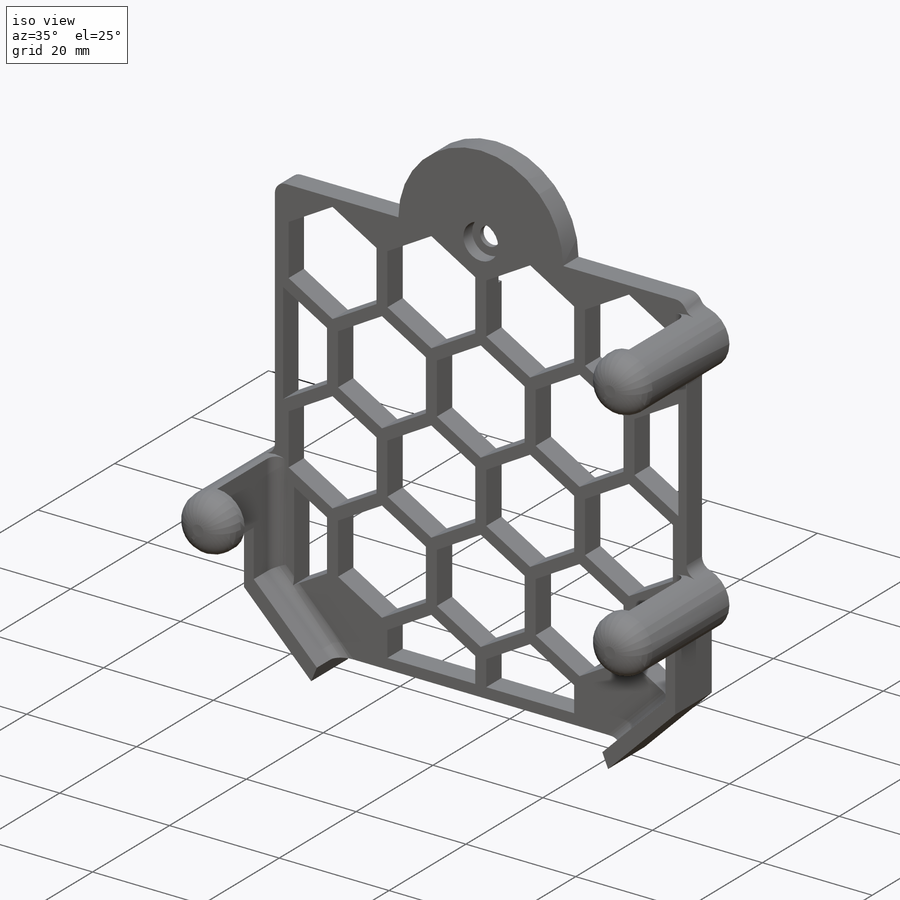
[diagram: iso view]
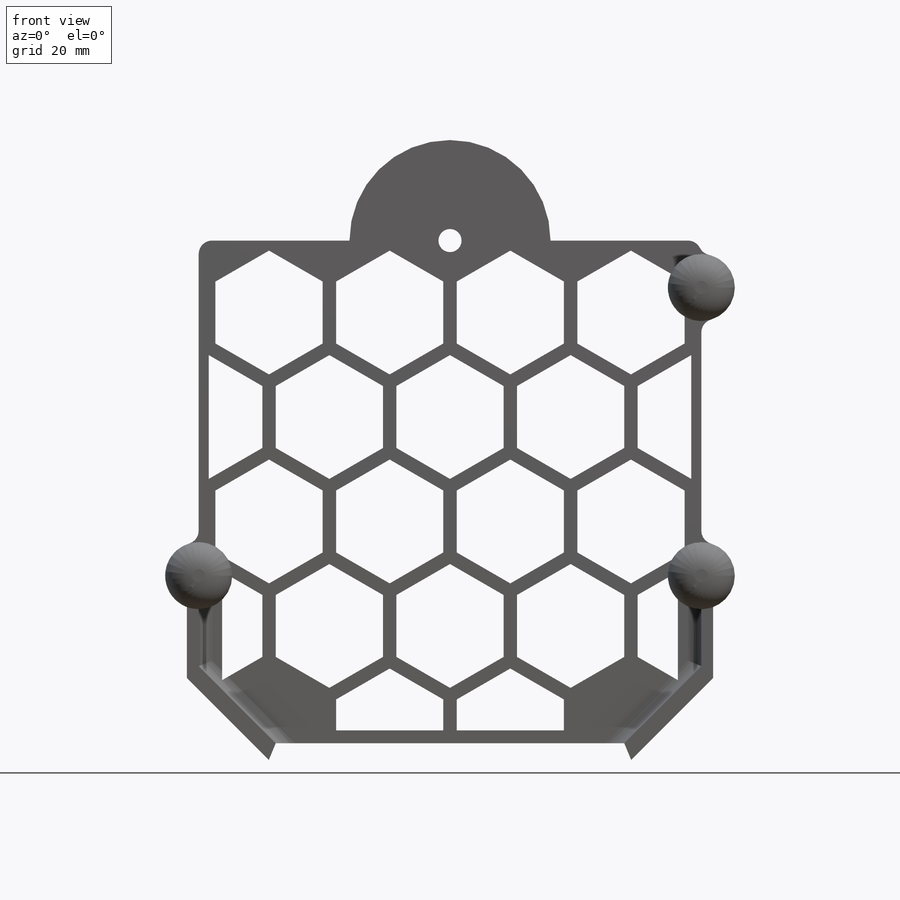
[diagram: front view]
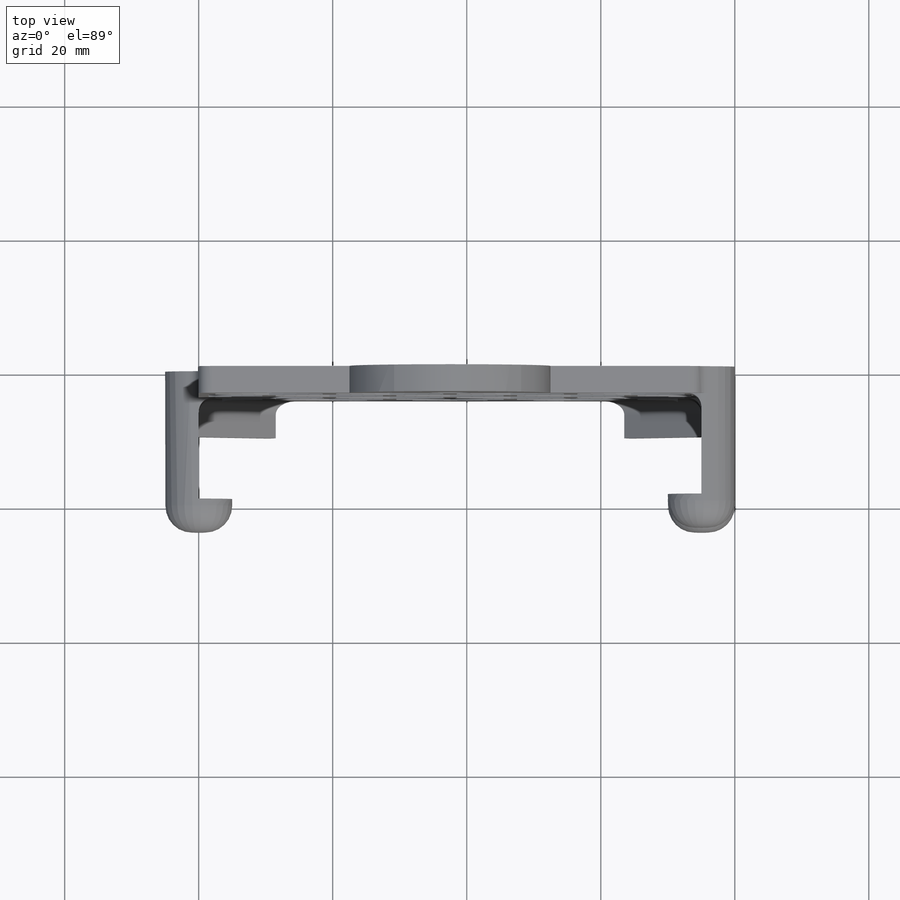
[diagram: top view]
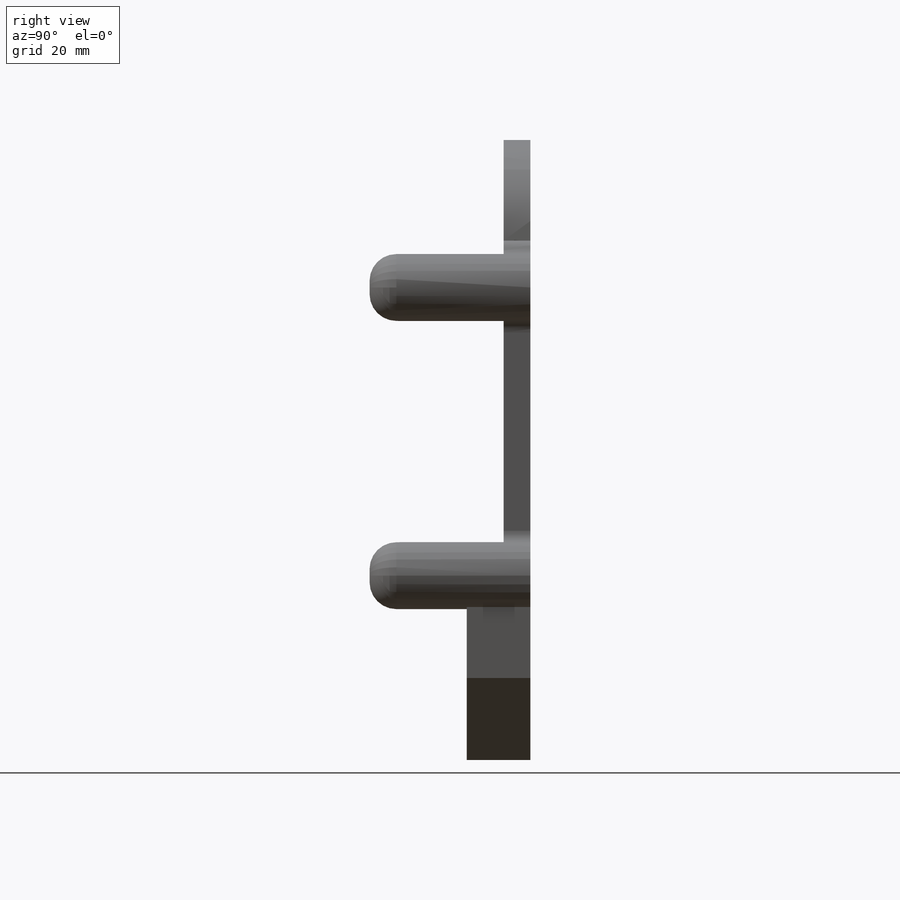
[diagram: right view]
SOLIDWORKS PART (.sldprt)
format: sldprt  version: not decoded by parser v0  size: 706,048 bytes
history: native  units: mm
features: sketch x8, extrude x3, plane x3, cut_extrude x3, fillet x3, material x1, hole x1 (+13 scaffold rows collapsed)
feature tree (35):
  scaffold x13  (default folders/planes/origin — collapsed)
  material  "Material <not specified>"
  sketch  "Sketch1"  dims[c1.D5=10.0mm c1.D7=10.0mm c1.D8=1.99mm c1.D9=~8.376531mm c1.D1=75.0mm c1.D2=150.0mm c1.D3=26.0mm c1.D4=26.0mm c2.D5=15.0mm c2.D6=0.0mm c3.D5=25.0mm c3.D6=25.0mm c3.D7=15.0mm c3.D2=75.0mm c4.D7=2.0mm c4.D1=2.5mm]
  extrude  "Base"  Depth=4mm
  extrude  "Phone Posts"  [1 undecoded]
  sketch  "Sketch1<3>"  dims[D1=24.0mm]
  extrude  "Bottom Phone Retainer"  [1 undecoded]
  sketch  "Sketch1<4>"  dims[D1=9.5mm]
  plane  "Plane1"  Offset=0mm
  sketch  "Sketch2"  dims[D1=15.0mm D2=75.0mm]
  cut_extrude  "Phone Slot"  [1 undecoded]
  fillet  "Fillet1"  Radius=4mm
  fillet  "Fillet3"  Radius=2mm
  plane  "Plane2"  Offset=0mm
  sketch  "Honey Comb Retainer"  dims[D3=7.6mm D1=15.0mm D2=15.0mm]
  plane  "Plane3"  Offset=0mm
  sketch  "Sketch5"  dims[c1.D6=~69.637731mm c1.D3=9.0mm c1.D5=6.0mm c1.D7=7.0mm c1.D1=75.0mm c1.D2=37.5mm c2.D3=10.0mm c2.D4=10.0mm c2.D5=5.0mm c2.D6=37.5mm c2.D7=37.5mm c2.D1=1.5mm c2.D2=1.5mm c3.D1=1.5mm c3.D2=2.5mm c3.D4=18.0mm c3.D6=18.0mm c3.D8=18.0mm c3.D10=18.0mm c3.D12=18.0mm c3.D14=18.0mm c3.D16=18.0mm c3.D18=18.0mm c3.D20=18.0mm c3.D21=3.5mm c3.D22=3.5mm c3.D3=5.0 c3.D5=4.0 c3.D7=4.0 c3.D9=3.0 c3.D11=3.0 c3.D13=2.0 c3.D15=2.0 c3.D17=2.0 c3.D19=3.0]
  cut_extrude  "Cut-Extrude4"  [1 undecoded]
  fillet  "Fillet4"  Radius=2mm
  cut_extrude  "Cut-Extrude5"  Depth=0.8mm
  hole  "CBORE for #4 Button Head Cap Screw1"  Diameter=3.4544mm Depth=4mm
  sketch  "Sketch10"  dims[D1=15.0mm]
  sketch  "Sketch8"  dims[hole-wizard template sketch: 41 standard entries collapsed; hole parameters kept: c12.Thru Hole Dia.=3.4544mm c12.Thru Hole Depth=4.0mm c12.C'Bore Dia.=6.35mm c12.C'Bore Depth=~2.298598mm]
decode coverage: 14 of 18 modeling features carry decoded parameters
note: ~ marks probable driven/reference dimensions
note: 4 parameter values undecoded
summary: no parameter record found for 4 features
note: suppression state not decoded; provenance and decode notes live in map.json
